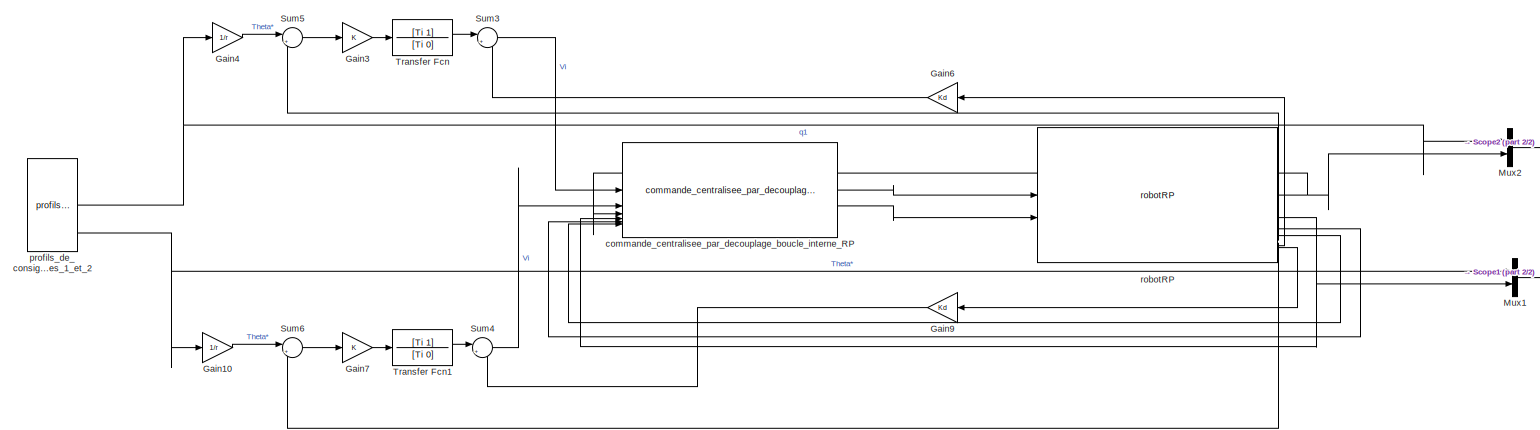
[diagram: root canvas - part 1/2, most of the canvas]
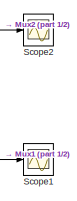
[diagram: root canvas - part 2/2, middle right region]
MODEL slx_d7254e1bc1f1
KIND model
CONFIG AbsTol = auto
CONFIG EnableMultiTasking = off
CONFIG FixedStep = auto
CONFIG MaxStep = auto
CONFIG MinStep = auto
CONFIG RelTol = 1e-3
CONFIG SampleTimeConstraint = Unconstrained
CONFIG SolverName = VariableStepAuto
CONFIG StartTime = 0.0
CONFIG StopTime = 10.0
BLOCK [Gain] Gain10
  Gain = 1/r
BLOCK [Gain] Gain3
  Gain = K
BLOCK [Gain] Gain4
  Gain = 1/r
BLOCK [Gain] Gain6
  Gain = Kd
BLOCK [Gain] Gain7
  Gain = K
BLOCK [Gain] Gain9
  Gain = Kd
BLOCK [Mux] Mux1
  DisplayOption = bar
  Inputs = 2
BLOCK [Mux] Mux2
  DisplayOption = bar
  Inputs = 2
BLOCK [Scope] Scope1
  Floating = off
  NumInputPorts = 1
  ScopeSpecificationString = Simulink.scopes.TimeScopeBlockCfg('CurrentConfiguration', extmgr.ConfigurationSet(extmgr.Configuration('Core','General UI',true),extmgr.Configuration('Core','Source UI',true),extmgr.Configuration('Sources','WiredSimulink',true,'DataLoggingVariableName','ScopeData1'),extmgr.Configuration('Visuals','Time Domain',true,'SerializedDisplays',{struct('MinYLimReal','0.4342','MaxYLimReal','1.09216','YLabel...<+1664ch>
BLOCK [Scope] Scope2
  Floating = off
  NumInputPorts = 1
  ScopeSpecificationString = Simulink.scopes.TimeScopeBlockCfg('CurrentConfiguration', extmgr.ConfigurationSet(extmgr.Configuration('Core','General UI',true),extmgr.Configuration('Core','Source UI',true),extmgr.Configuration('Sources','WiredSimulink',true),extmgr.Configuration('Visuals','Time Domain',true,'SerializedDisplays',{struct('MinYLimReal','-0.2068','MaxYLimReal','1.86119','YLabelReal','','MinYLimMag','0.00000','MaxYL...<+1626ch>
BLOCK [Sum] Sum3
  Inputs = |+-
BLOCK [Sum] Sum4
  Inputs = |+-
BLOCK [Sum] Sum5
  Inputs = |+-
BLOCK [Sum] Sum6
  Inputs = |+-
BLOCK [TransferFcn] Transfer Fcn
  Denominator = [Ti 0]
  Numerator = [Ti 1]
BLOCK [TransferFcn] Transfer Fcn1
  Denominator = [Ti 0]
  Numerator = [Ti 1]
BLOCK [Reference] commande_centralisee_par_decouplage_boucle_interne_RP  REF=lib_robotRP/commande_centralisee_par_decouplage_boucle_interne_RP
  SourceBlock = lib_robotRP/commande_centralisee_par_decouplage_boucle_interne_RP
  SourceType = commande_feedback_linearisant_RP
BLOCK [Reference] profils_de_consignes axes_1_et_2  REF=lib_robotRP/profils_de_consignes
axes_1_et_2
  SourceBlock = lib_robotRP/profils_de_consignes\naxes_1_et_2
  SourceType = profils_de_consignes_axes_1_et_2
BLOCK [Reference] robotRP  REF=lib_robotRP/robotRP
  SourceBlock = lib_robotRP/robotRP
  SourceType = robotRP_commande_en_vitesse
LINE Gain10:1 -> Sum6:1
LINE Gain3:1 -> Transfer Fcn:1
LINE Gain4:1 -> Sum5:1
LINE Gain6:1 -> Sum3:2
LINE Gain7:1 -> Transfer Fcn1:1
LINE Gain9:1 -> Sum4:2
LINE Mux1:1 -> Scope1:1
LINE Mux2:1 -> Scope2:1
LINE Sum3:1 -> commande_centralisee_par_decouplage_boucle_interne_RP:1
LINE Sum4:1 -> commande_centralisee_par_decouplage_boucle_interne_RP:2
LINE Sum5:1 -> Gain3:1
LINE Sum6:1 -> Gain7:1
LINE Transfer Fcn1:1 -> Sum4:1
LINE Transfer Fcn:1 -> Sum3:1
LINE commande_centralisee_par_decouplage_boucle_interne_RP:1 -> robotRP:1
LINE commande_centralisee_par_decouplage_boucle_interne_RP:2 -> robotRP:2
NET profils_de_consignes axes_1_et_2:1 -> Gain4:1, Mux2:1
NET profils_de_consignes axes_1_et_2:4 -> Gain10:1, Mux1:1
NET robotRP:1 -> Mux2:2, commande_centralisee_par_decouplage_boucle_interne_RP:3
NET robotRP:2 -> Mux1:2, commande_centralisee_par_decouplage_boucle_interne_RP:4
LINE robotRP:3 -> commande_centralisee_par_decouplage_boucle_interne_RP:5
LINE robotRP:4 -> commande_centralisee_par_decouplage_boucle_interne_RP:6
LINE robotRP:5 -> Sum5:2
LINE robotRP:6 -> Sum6:2
LINE robotRP:7 -> Gain6:1
LINE robotRP:8 -> Gain9:1
note: NET lines group one-source signal fan-out (src -> all destinations, sorted); 1:1 wires keep LINE
